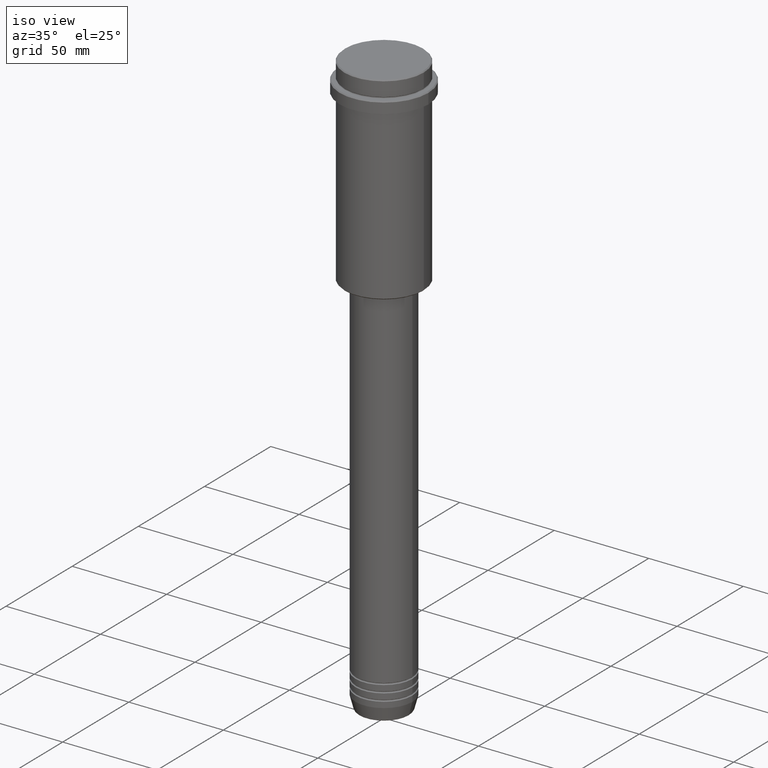
[diagram: clean part render]
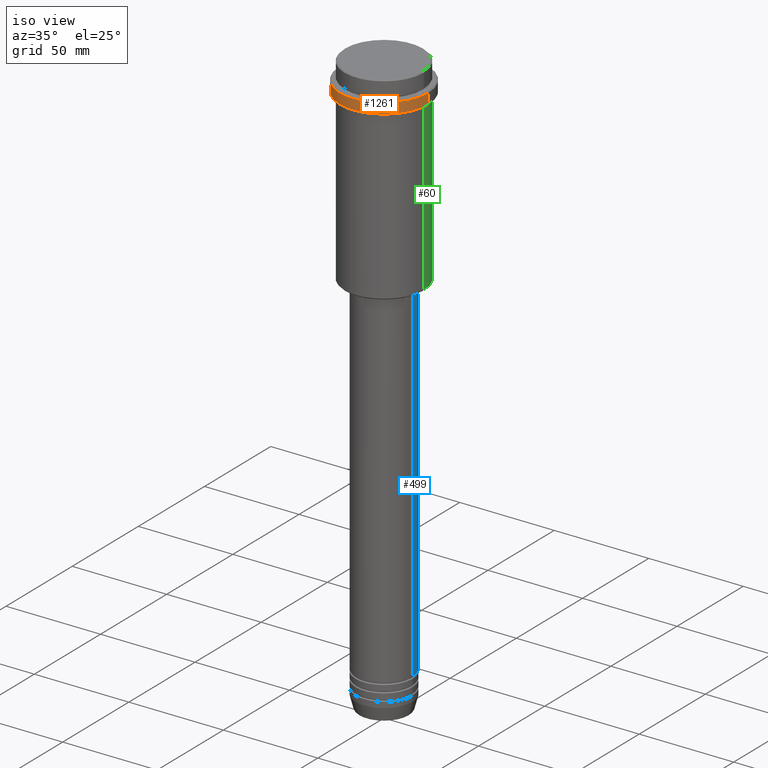
[diagram: same view with three faces highlighted in distinct colors, each labeled with its STEP entity id]
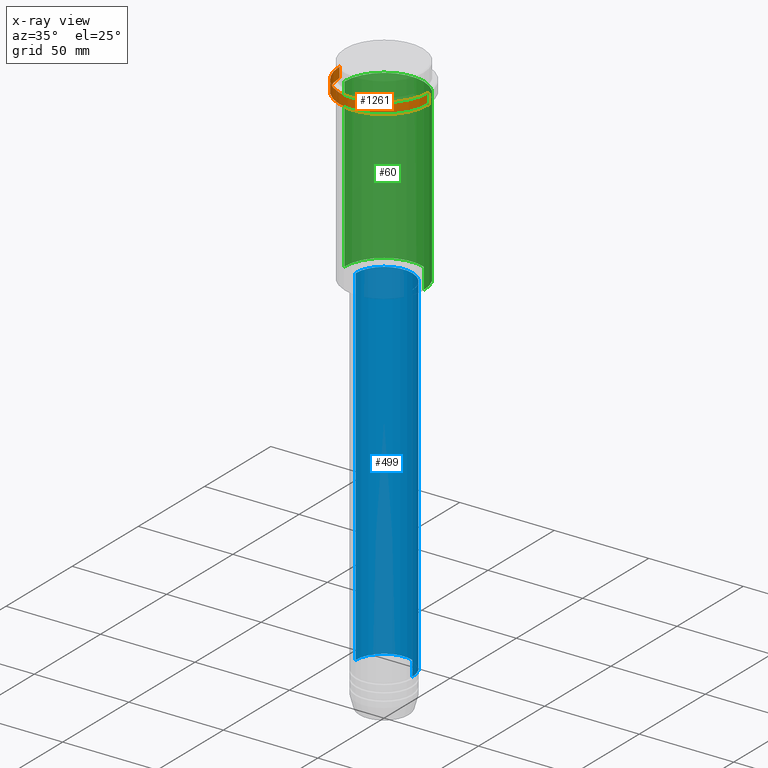
[diagram: x-ray of the same camera — body ghosted, the three highlighted faces saturated]
A machine part, iso view with three faces highlighted in distinct colors.
The next image is the same camera in x-ray (body ghosted, the three faces saturated) — at least one of them is partly hidden behind the body in this view.
Their STEP definitions:

[orange] entity #1261 — the highlighted cylindrical surface (partial cylindrical patch) has radius 23.5 mm, axis along (-0, -0, 1).
#4 = EDGE_LOOP ( 'NONE', ( #1145, #1059, #23, #817 ) ) ;
#16 = AXIS2_PLACEMENT_3D ( 'NONE', #380, #837, #831 ) ;
#23 = ORIENTED_EDGE ( 'NONE', *, *, #1153, .T. ) ;
#27 = CYLINDRICAL_SURFACE ( 'NONE', #577, 23.50000000000000000 ) ;
#42 = VECTOR ( 'NONE', #1194, 1000.000000000000000 ) ;
#124 = CARTESIAN_POINT ( 'NONE',  ( 23.50000000000000000, 0.000000000000000000, 0.000000000000000000 ) ) ;
#152 = CARTESIAN_POINT ( 'NONE',  ( 23.50000000000000355, 0.000000000000000000, -15.00000000000000000 ) ) ;
#228 = VECTOR ( 'NONE', #1127, 1000.000000000000000 ) ;
#278 = VERTEX_POINT ( 'NONE', #1108 ) ;
#320 = EDGE_CURVE ( 'NONE', #534, #278, #480, .T. ) ;
#380 = CARTESIAN_POINT ( 'NONE',  ( 0.000000000000000000, 0.000000000000000000, -9.500000000000000000 ) ) ;
#389 = CARTESIAN_POINT ( 'NONE',  ( -23.50000000000000000, 2.877919977996280320E-15, 0.000000000000000000 ) ) ;
#480 = CIRCLE ( 'NONE', #16, 23.50000000000000000 ) ;
#534 = VERTEX_POINT ( 'NONE', #559 ) ;
#559 = CARTESIAN_POINT ( 'NONE',  ( 23.50000000000000000, 0.000000000000000000, -9.500000000000000000 ) ) ;
#577 = AXIS2_PLACEMENT_3D ( 'NONE', #685, #1135, #1128 ) ;
#653 = EDGE_CURVE ( 'NONE', #938, #278, #931, .T. ) ;
#685 = CARTESIAN_POINT ( 'NONE',  ( 0.000000000000000000, 0.000000000000000000, 0.000000000000000000 ) ) ;
#690 = AXIS2_PLACEMENT_3D ( 'NONE', #1188, #1216, #884 ) ;
#817 = ORIENTED_EDGE ( 'NONE', *, *, #320, .T. ) ;
#831 = DIRECTION ( 'NONE',  ( 1.000000000000000000, 0.000000000000000000, 0.000000000000000000 ) ) ;
#837 = DIRECTION ( 'NONE',  ( 0.000000000000000000, 0.000000000000000000, -1.000000000000000000 ) ) ;
#884 = DIRECTION ( 'NONE',  ( 1.000000000000000000, 0.000000000000000000, 0.000000000000000000 ) ) ;
#905 = FACE_OUTER_BOUND ( 'NONE', #4, .T. ) ;
#931 = LINE ( 'NONE', #389, #228 ) ;
#938 = VERTEX_POINT ( 'NONE', #1183 ) ;
#1005 = LINE ( 'NONE', #124, #42 ) ;
#1059 = ORIENTED_EDGE ( 'NONE', *, *, #1129, .T. ) ;
#1075 = CIRCLE ( 'NONE', #690, 23.50000000000000355 ) ;
#1108 = CARTESIAN_POINT ( 'NONE',  ( -23.50000000000000000, 2.877919977996280320E-15, -9.500000000000000000 ) ) ;
#1127 = DIRECTION ( 'NONE',  ( -0.000000000000000000, -0.000000000000000000, 1.000000000000000000 ) ) ;
#1128 = DIRECTION ( 'NONE',  ( 1.000000000000000000, 0.000000000000000000, 0.000000000000000000 ) ) ;
#1129 = EDGE_CURVE ( 'NONE', #938, #1276, #1075, .T. ) ;
#1135 = DIRECTION ( 'NONE',  ( -0.000000000000000000, -0.000000000000000000, 1.000000000000000000 ) ) ;
#1145 = ORIENTED_EDGE ( 'NONE', *, *, #653, .F. ) ;
#1153 = EDGE_CURVE ( 'NONE', #1276, #534, #1005, .T. ) ;
#1183 = CARTESIAN_POINT ( 'NONE',  ( -23.50000000000000711, 2.877919977996281109E-15, -15.00000000000000000 ) ) ;
#1188 = CARTESIAN_POINT ( 'NONE',  ( 0.000000000000000000, 0.000000000000000000, -15.00000000000000000 ) ) ;
#1194 = DIRECTION ( 'NONE',  ( -0.000000000000000000, -0.000000000000000000, 1.000000000000000000 ) ) ;
#1216 = DIRECTION ( 'NONE',  ( -0.000000000000000000, -0.000000000000000000, 1.000000000000000000 ) ) ;
#1261 = ADVANCED_FACE ( 'NONE', ( #905 ), #27, .T. ) ;
#1276 = VERTEX_POINT ( 'NONE', #152 ) ;

[blue] entity #499 — the highlighted cylindrical surface (edge-blend (fillet) strip) has radius 15 mm, axis along (-0, -0, 1).
#28 = EDGE_CURVE ( 'NONE', #58, #504, #1084, .T. ) ;
#39 = AXIS2_PLACEMENT_3D ( 'NONE', #1021, #1337, #369 ) ;
#58 = VERTEX_POINT ( 'NONE', #217 ) ;
#67 = CIRCLE ( 'NONE', #1367, 15.00000000000000000 ) ;
#117 = CARTESIAN_POINT ( 'NONE',  ( -15.00000000000000000, 1.836970198721029589E-15, -105.9999999999999289 ) ) ;
#217 = CARTESIAN_POINT ( 'NONE',  ( -15.00000000000000000, 1.836970198721029589E-15, -290.9999999999998863 ) ) ;
#268 = ORIENTED_EDGE ( 'NONE', *, *, #28, .T. ) ;
#273 = DIRECTION ( 'NONE',  ( 1.000000000000000000, 0.000000000000000000, 0.000000000000000000 ) ) ;
#360 = VERTEX_POINT ( 'NONE', #395 ) ;
#369 = DIRECTION ( 'NONE',  ( 1.000000000000000000, 0.000000000000000000, 0.000000000000000000 ) ) ;
#395 = CARTESIAN_POINT ( 'NONE',  ( 15.00000000000000000, 0.000000000000000000, -290.9999999999998863 ) ) ;
#413 = VECTOR ( 'NONE', #1410, 1000.000000000000000 ) ;
#499 = ADVANCED_FACE ( 'NONE', ( #767 ), #982, .T. ) ;
#504 = VERTEX_POINT ( 'NONE', #117 ) ;
#529 = AXIS2_PLACEMENT_3D ( 'NONE', #1416, #996, #1193 ) ;
#580 = EDGE_CURVE ( 'NONE', #1220, #504, #667, .T. ) ;
#654 = CARTESIAN_POINT ( 'NONE',  ( 15.00000000000000000, 0.000000000000000000, -105.9999999999999289 ) ) ;
#667 = CIRCLE ( 'NONE', #39, 15.00000000000000000 ) ;
#700 = CARTESIAN_POINT ( 'NONE',  ( 0.000000000000000000, 0.000000000000000000, -290.9999999999998863 ) ) ;
#710 = ORIENTED_EDGE ( 'NONE', *, *, #1306, .T. ) ;
#766 = LINE ( 'NONE', #1406, #782 ) ;
#767 = FACE_OUTER_BOUND ( 'NONE', #1120, .T. ) ;
#782 = VECTOR ( 'NONE', #1313, 1000.000000000000000 ) ;
#926 = EDGE_CURVE ( 'NONE', #360, #1220, #766, .T. ) ;
#973 = CARTESIAN_POINT ( 'NONE',  ( -15.00000000000000000, 1.836970198721029589E-15, 0.000000000000000000 ) ) ;
#982 = CYLINDRICAL_SURFACE ( 'NONE', #529, 15.00000000000000000 ) ;
#996 = DIRECTION ( 'NONE',  ( -0.000000000000000000, -0.000000000000000000, 1.000000000000000000 ) ) ;
#1021 = CARTESIAN_POINT ( 'NONE',  ( 0.000000000000000000, 0.000000000000000000, -105.9999999999999289 ) ) ;
#1084 = LINE ( 'NONE', #973, #413 ) ;
#1120 = EDGE_LOOP ( 'NONE', ( #710, #268, #1196, #1368 ) ) ;
#1193 = DIRECTION ( 'NONE',  ( 1.000000000000000000, 0.000000000000000000, 0.000000000000000000 ) ) ;
#1196 = ORIENTED_EDGE ( 'NONE', *, *, #580, .F. ) ;
#1220 = VERTEX_POINT ( 'NONE', #654 ) ;
#1306 = EDGE_CURVE ( 'NONE', #360, #58, #67, .T. ) ;
#1313 = DIRECTION ( 'NONE',  ( -0.000000000000000000, -0.000000000000000000, 1.000000000000000000 ) ) ;
#1337 = DIRECTION ( 'NONE',  ( -0.000000000000000000, -0.000000000000000000, 1.000000000000000000 ) ) ;
#1349 = DIRECTION ( 'NONE',  ( -0.000000000000000000, -0.000000000000000000, 1.000000000000000000 ) ) ;
#1367 = AXIS2_PLACEMENT_3D ( 'NONE', #700, #1349, #273 ) ;
#1368 = ORIENTED_EDGE ( 'NONE', *, *, #926, .F. ) ;
#1406 = CARTESIAN_POINT ( 'NONE',  ( 15.00000000000000000, 0.000000000000000000, 0.000000000000000000 ) ) ;
#1410 = DIRECTION ( 'NONE',  ( -0.000000000000000000, -0.000000000000000000, 1.000000000000000000 ) ) ;
#1416 = CARTESIAN_POINT ( 'NONE',  ( 0.000000000000000000, 0.000000000000000000, 0.000000000000000000 ) ) ;

[green] entity #60 — the highlighted cylindrical surface (partial cylindrical patch) has radius 21 mm, axis along (-0, -0, 1).
#60 = ADVANCED_FACE ( 'NONE', ( #211 ), #102, .T. ) ;
#82 = EDGE_CURVE ( 'NONE', #336, #1262, #97, .T. ) ;
#85 = CIRCLE ( 'NONE', #315, 21.00000000000000000 ) ;
#97 = LINE ( 'NONE', #856, #958 ) ;
#102 = CYLINDRICAL_SURFACE ( 'NONE', #1022, 21.00000000000000000 ) ;
#126 = EDGE_CURVE ( 'NONE', #336, #1019, #85, .T. ) ;
#137 = CIRCLE ( 'NONE', #1340, 21.00000000000000000 ) ;
#156 = DIRECTION ( 'NONE',  ( -0.000000000000000000, -0.000000000000000000, 1.000000000000000000 ) ) ;
#166 = CARTESIAN_POINT ( 'NONE',  ( 21.00000000000000000, 0.000000000000000000, -16.00000000000000355 ) ) ;
#186 = EDGE_LOOP ( 'NONE', ( #749, #969, #1347, #411 ) ) ;
#211 = FACE_OUTER_BOUND ( 'NONE', #186, .T. ) ;
#249 = DIRECTION ( 'NONE',  ( -0.000000000000000000, -0.000000000000000000, 1.000000000000000000 ) ) ;
#269 = DIRECTION ( 'NONE',  ( 1.000000000000000000, 0.000000000000000000, 0.000000000000000000 ) ) ;
#287 = CARTESIAN_POINT ( 'NONE',  ( 21.00000000000000000, 0.000000000000000000, -104.5000000000000853 ) ) ;
#306 = CARTESIAN_POINT ( 'NONE',  ( 0.000000000000000000, 0.000000000000000000, 0.000000000000000000 ) ) ;
#315 = AXIS2_PLACEMENT_3D ( 'NONE', #335, #776, #1200 ) ;
#335 = CARTESIAN_POINT ( 'NONE',  ( 0.000000000000000000, 0.000000000000000000, -104.5000000000000853 ) ) ;
#336 = VERTEX_POINT ( 'NONE', #287 ) ;
#411 = ORIENTED_EDGE ( 'NONE', *, *, #82, .F. ) ;
#425 = CARTESIAN_POINT ( 'NONE',  ( -21.00000000000000000, 2.571758278209441661E-15, -104.5000000000000853 ) ) ;
#442 = CARTESIAN_POINT ( 'NONE',  ( -21.00000000000000000, 2.571758278209441661E-15, -16.00000000000000355 ) ) ;
#543 = EDGE_CURVE ( 'NONE', #1019, #952, #898, .T. ) ;
#561 = DIRECTION ( 'NONE',  ( 1.000000000000000000, 0.000000000000000000, 0.000000000000000000 ) ) ;
#659 = EDGE_CURVE ( 'NONE', #1262, #952, #137, .T. ) ;
#661 = DIRECTION ( 'NONE',  ( -0.000000000000000000, -0.000000000000000000, 1.000000000000000000 ) ) ;
#749 = ORIENTED_EDGE ( 'NONE', *, *, #126, .T. ) ;
#776 = DIRECTION ( 'NONE',  ( -0.000000000000000000, -0.000000000000000000, 1.000000000000000000 ) ) ;
#799 = CARTESIAN_POINT ( 'NONE',  ( 0.000000000000000000, 0.000000000000000000, -16.00000000000000355 ) ) ;
#856 = CARTESIAN_POINT ( 'NONE',  ( 21.00000000000000000, 0.000000000000000000, 0.000000000000000000 ) ) ;
#898 = LINE ( 'NONE', #904, #1317 ) ;
#904 = CARTESIAN_POINT ( 'NONE',  ( -21.00000000000000000, 2.571758278209441661E-15, 0.000000000000000000 ) ) ;
#952 = VERTEX_POINT ( 'NONE', #442 ) ;
#958 = VECTOR ( 'NONE', #661, 1000.000000000000000 ) ;
#969 = ORIENTED_EDGE ( 'NONE', *, *, #543, .T. ) ;
#1019 = VERTEX_POINT ( 'NONE', #425 ) ;
#1022 = AXIS2_PLACEMENT_3D ( 'NONE', #306, #1195, #561 ) ;
#1195 = DIRECTION ( 'NONE',  ( -0.000000000000000000, -0.000000000000000000, 1.000000000000000000 ) ) ;
#1200 = DIRECTION ( 'NONE',  ( -1.000000000000000000, 0.000000000000000000, 0.000000000000000000 ) ) ;
#1262 = VERTEX_POINT ( 'NONE', #166 ) ;
#1317 = VECTOR ( 'NONE', #156, 1000.000000000000000 ) ;
#1340 = AXIS2_PLACEMENT_3D ( 'NONE', #799, #249, #269 ) ;
#1347 = ORIENTED_EDGE ( 'NONE', *, *, #659, .F. ) ;